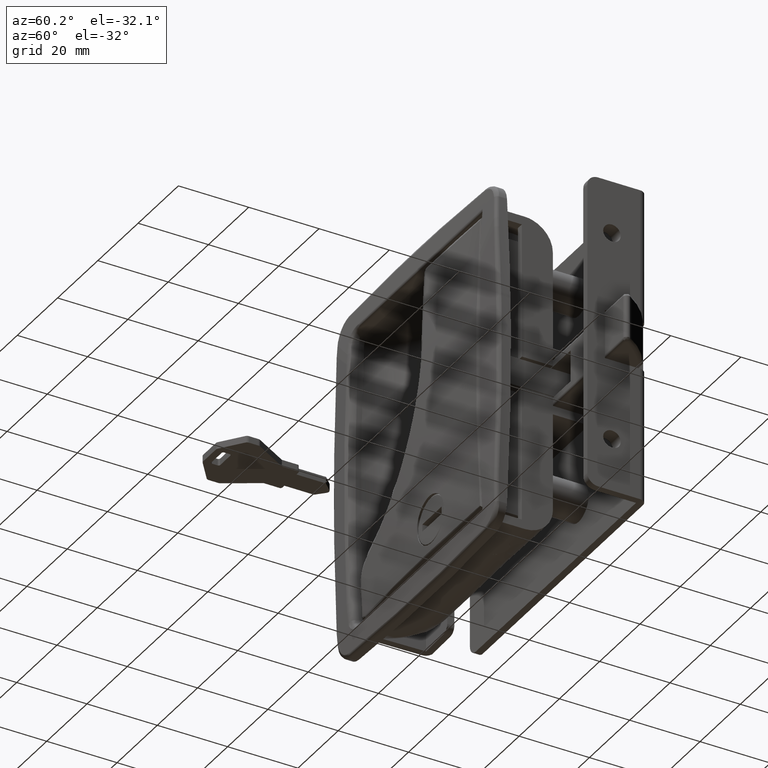
[diagram: clean part render]
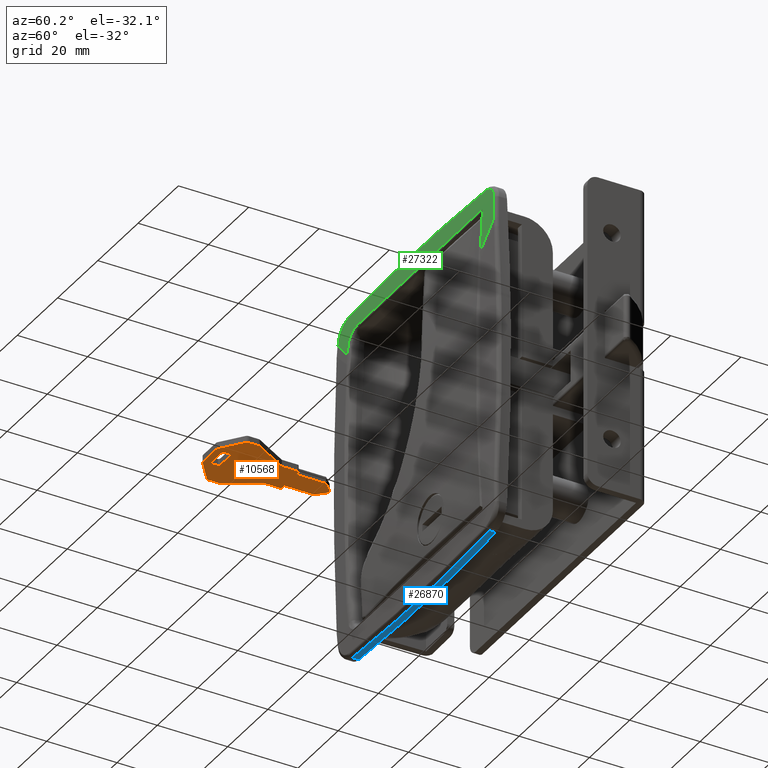
[diagram: same view with three faces highlighted in distinct colors, each labeled with its STEP entity id]
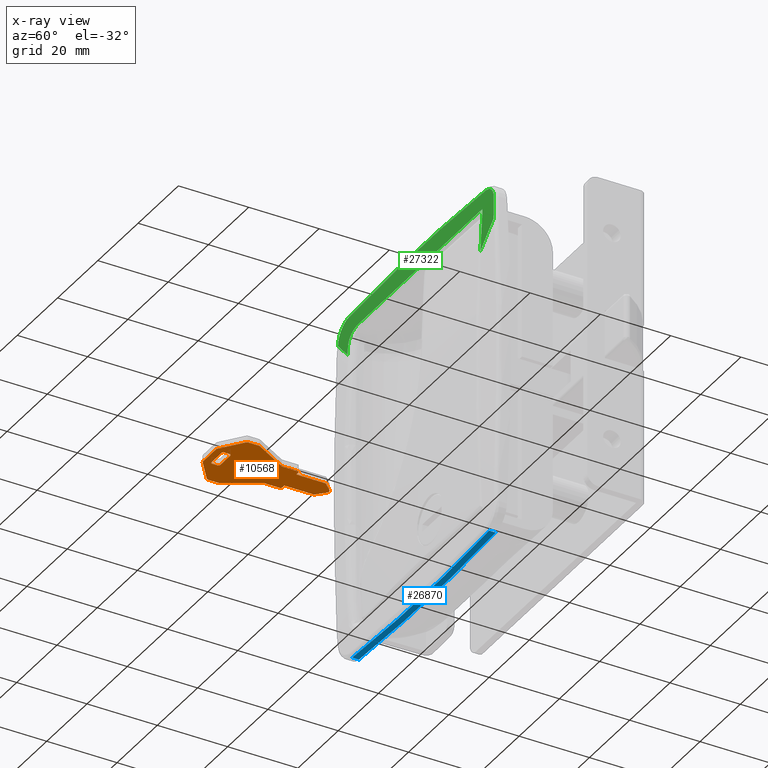
[diagram: x-ray of the same camera — body ghosted, the three highlighted faces saturated]
A machine part, auxiliary view with three faces highlighted in distinct colors.
The next image is the same camera in x-ray (body ghosted, the three faces saturated) — at least one of them is partly hidden behind the body in this view.
Their STEP definitions:

[orange] entity #10568 — the highlighted face is a freeform B-spline surface patch.
#9838=CARTESIAN_POINT('',(4.999000000000270,-93.042406756505400,-33.949700000000000));
#9839=VERTEX_POINT('',#9838);
#9847=CARTESIAN_POINT('',(4.999000000000270,-91.542406756505386,-33.949700000000000));
#9848=VERTEX_POINT('',#9847);
#9849=CARTESIAN_POINT('',(4.999000000000270,-93.042406756505400,-33.949700000000000));
#9850=CARTESIAN_POINT('',(4.999000000000270,-91.542406756505386,-33.949700000000000));
#9851=QUASI_UNIFORM_CURVE('',1,(#9849,#9850),.UNSPECIFIED.,.F.,.U.);
#9852=EDGE_CURVE('',#9839,#9848,#9851,.T.);
#9883=CARTESIAN_POINT('',(5.499000000000271,-93.542406756505400,-33.949700000000000));
#9884=VERTEX_POINT('',#9883);
#9892=CARTESIAN_POINT('',(5.499000000000271,-93.542406756505400,-33.949700000000000));
#9893=CARTESIAN_POINT('',(5.441733124795774,-93.542438690780415,-33.949700000000021));
#9894=CARTESIAN_POINT('',(5.319014302539554,-93.521111773828594,-33.949700000000000));
#9895=CARTESIAN_POINT('',(5.154449940866418,-93.422568526423419,-33.949700000000021));
#9896=CARTESIAN_POINT('',(5.030296794112385,-93.255015657728293,-33.949700000000007));
#9897=CARTESIAN_POINT('',(4.998886156993971,-93.116063852101391,-33.949699999999943));
#9898=CARTESIAN_POINT('',(4.999000000000270,-93.042406756505400,-33.949700000000000));
#9899=B_SPLINE_CURVE_WITH_KNOTS('',3,(#9892,#9893,#9894,#9895,#9896,#9897,#9898),.UNSPECIFIED.,.F.,.U.,(4,1,1,1,4),(0.000000378578442,0.171817992871132,0.368214264647441,0.564555943816670,0.785476941722350),.UNSPECIFIED.);
#9900=EDGE_CURVE('',#9884,#9839,#9899,.T.);
#9921=CARTESIAN_POINT('',(10.499000000000200,-93.542406756505400,-33.949700000000000));
#9922=VERTEX_POINT('',#9921);
#9930=CARTESIAN_POINT('',(10.499000000000200,-93.542406756505400,-33.949700000000000));
#9931=CARTESIAN_POINT('',(5.499000000000271,-93.542406756505400,-33.949700000000000));
#9932=QUASI_UNIFORM_CURVE('',1,(#9930,#9931),.UNSPECIFIED.,.F.,.U.);
#9933=EDGE_CURVE('',#9922,#9884,#9932,.T.);
#9958=CARTESIAN_POINT('',(10.999000000000200,-93.042406756505400,-33.949700000000000));
#9959=VERTEX_POINT('',#9958);
#9967=CARTESIAN_POINT('',(10.999000000000200,-93.042406756505400,-33.949700000000000));
#9968=CARTESIAN_POINT('',(10.999262874163060,-93.132462352309332,-33.949699999999993));
#9969=CARTESIAN_POINT('',(10.955845226088320,-93.287614928145828,-33.949700000000043));
#9970=CARTESIAN_POINT('',(10.827016425533881,-93.429722114974339,-33.949699999999993));
#9971=CARTESIAN_POINT('',(10.678911699377689,-93.518464593670188,-33.949700000000050));
#9972=CARTESIAN_POINT('',(10.572659410082499,-93.542526885230799,-33.949700000000078));
#9973=CARTESIAN_POINT('',(10.499000000000200,-93.542406756505400,-33.949700000000000));
#9974=B_SPLINE_CURVE_WITH_KNOTS('',3,(#9967,#9968,#9969,#9970,#9971,#9972,#9973),.UNSPECIFIED.,.F.,.U.,(4,1,1,1,4),(0.000000378573727,0.270014768421232,0.466349057516936,0.564555943815922,0.785476941722387),.UNSPECIFIED.);
#9975=EDGE_CURVE('',#9959,#9922,#9974,.T.);
#9996=CARTESIAN_POINT('',(10.999000000000200,-91.542406756505386,-33.949700000000000));
#9997=VERTEX_POINT('',#9996);
#10005=CARTESIAN_POINT('',(10.999000000000200,-91.542406756505386,-33.949700000000000));
#10006=CARTESIAN_POINT('',(10.999000000000200,-93.042406756505400,-33.949700000000000));
#10007=QUASI_UNIFORM_CURVE('',1,(#10005,#10006),.UNSPECIFIED.,.F.,.U.);
#10008=EDGE_CURVE('',#9997,#9959,#10007,.T.);
#10033=CARTESIAN_POINT('',(10.499000000000200,-91.042406756505386,-33.949700000000000));
#10034=VERTEX_POINT('',#10033);
#10042=CARTESIAN_POINT('',(10.499000000000200,-91.042406756505386,-33.949700000000000));
#10043=CARTESIAN_POINT('',(10.572655046071590,-91.042295589094877,-33.949700000000028));
#10044=CARTESIAN_POINT('',(10.695269794086100,-91.070034362044865,-33.949699999999957));
#10045=CARTESIAN_POINT('',(10.853462611938960,-91.175701592582897,-33.949700000000057));
#10046=CARTESIAN_POINT('',(10.967722967086139,-91.329774638029647,-33.949699999999893));
#10047=CARTESIAN_POINT('',(10.999102547587430,-91.468754605804605,-33.949700000000107));
#10048=CARTESIAN_POINT('',(10.999000000000200,-91.542406756505386,-33.949700000000000));
#10049=B_SPLINE_CURVE_WITH_KNOTS('',3,(#10042,#10043,#10044,#10045,#10046,#10047,#10048),.UNSPECIFIED.,.F.,.U.,(4,1,1,1,4),(0.000000378576614,0.220921393037243,0.368214264646619,0.564555943816410,0.785476941722344),.UNSPECIFIED.);
#10050=EDGE_CURVE('',#10034,#9997,#10049,.T.);
#10071=CARTESIAN_POINT('',(5.499000000000271,-91.042406756505386,-33.949700000000000));
#10072=VERTEX_POINT('',#10071);
#10080=CARTESIAN_POINT('',(5.499000000000271,-91.042406756505386,-33.949700000000000));
#10081=CARTESIAN_POINT('',(10.499000000000200,-91.042406756505386,-33.949700000000000));
#10082=QUASI_UNIFORM_CURVE('',1,(#10080,#10081),.UNSPECIFIED.,.F.,.U.);
#10083=EDGE_CURVE('',#10072,#10034,#10082,.T.);
#10109=CARTESIAN_POINT('',(4.999000000000270,-91.542406756505386,-33.949700000000000));
#10110=CARTESIAN_POINT('',(4.998747727713385,-91.452361810856061,-33.949700000000043));
#10111=CARTESIAN_POINT('',(5.042143483192164,-91.297185967826110,-33.949699999999950));
#10112=CARTESIAN_POINT('',(5.170988344813793,-91.155099174432635,-33.949700000000007));
#10113=CARTESIAN_POINT('',(5.319084685083299,-91.066337119005169,-33.949700000000057));
#10114=CARTESIAN_POINT('',(5.425343803967603,-91.042296898819700,-33.949700000000000));
#10115=CARTESIAN_POINT('',(5.499000000000271,-91.042406756505386,-33.949700000000000));
#10116=B_SPLINE_CURVE_WITH_KNOTS('',3,(#10109,#10110,#10111,#10112,#10113,#10114,#10115),.UNSPECIFIED.,.F.,.U.,(4,1,1,1,4),(0.000000378573002,0.270014768421335,0.466349057517006,0.564555943815952,0.785476941722334),.UNSPECIFIED.);
#10117=EDGE_CURVE('',#9848,#10072,#10116,.T.);
#10351=CARTESIAN_POINT('',(18.998000524473440,-97.240700024189820,-33.949700000000000));
#10352=CARTESIAN_POINT('',(-3.000000524473008,-97.240700024189820,-33.949700000000000));
#10353=CARTESIAN_POINT('',(18.998000524473440,-59.844192488915532,-33.949700000000000));
#10354=CARTESIAN_POINT('',(-3.000000524473008,-59.844192488915532,-33.949700000000000));
#10355=B_SPLINE_SURFACE_WITH_KNOTS('',1,1,((#10351,#10353),(#10352,#10354)),.UNSPECIFIED.,.F.,.F.,.U.,(2,2),(2,2),(0.0,21.998001048946449),(0.0,37.396507535274289),.UNSPECIFIED.);
#10356=CARTESIAN_POINT('',(3.999000000000185,-72.542406756505400,-33.949700000000000));
#10357=VERTEX_POINT('',#10356);
#10358=CARTESIAN_POINT('',(4.999000000000270,-72.542406756505400,-33.949700000000000));
#10359=VERTEX_POINT('',#10358);
#10360=CARTESIAN_POINT('',(3.999000000000185,-72.542406756505400,-33.949700000000000));
#10361=CARTESIAN_POINT('',(4.999000000000270,-72.542406756505400,-33.949700000000000));
#10362=QUASI_UNIFORM_CURVE('',1,(#10360,#10361),.UNSPECIFIED.,.F.,.U.);
#10363=EDGE_CURVE('',#10357,#10359,#10362,.T.);
#10364=ORIENTED_EDGE('',*,*,#10363,.T.);
#10365=CARTESIAN_POINT('',(4.999000000000270,-64.128106756505403,-33.949700000000000));
#10366=VERTEX_POINT('',#10365);
#10367=CARTESIAN_POINT('',(4.999000000000270,-72.542406756505400,-33.949700000000000));
#10368=CARTESIAN_POINT('',(4.999000000000270,-64.128106756505403,-33.949700000000000));
#10369=QUASI_UNIFORM_CURVE('',1,(#10367,#10368),.UNSPECIFIED.,.F.,.U.);
#10370=EDGE_CURVE('',#10359,#10366,#10369,.T.);
#10371=ORIENTED_EDGE('',*,*,#10370,.T.);
#10372=CARTESIAN_POINT('',(7.300941994688221,-61.826365541756012,-33.949700000000000));
#10373=VERTEX_POINT('',#10372);
#10374=CARTESIAN_POINT('',(4.999000000000270,-64.128106756505403,-33.949700000000000));
#10375=CARTESIAN_POINT('',(7.300941994688221,-61.826365541756012,-33.949700000000000));
#10376=QUASI_UNIFORM_CURVE('',1,(#10374,#10375),.UNSPECIFIED.,.F.,.U.);
#10377=EDGE_CURVE('',#10366,#10373,#10376,.T.);
#10378=ORIENTED_EDGE('',*,*,#10377,.T.);
#10379=CARTESIAN_POINT('',(8.714980323361301,-61.844286296584812,-33.949700000000000));
#10380=VERTEX_POINT('',#10379);
#10381=CARTESIAN_POINT('',(7.300941994688221,-61.826365541756012,-33.949700000000000));
#10382=CARTESIAN_POINT('',(7.394574649656654,-61.734853635371223,-33.949699999999979));
#10383=CARTESIAN_POINT('',(7.555497736963874,-61.630548147983959,-33.949700000000050));
#10384=CARTESIAN_POINT('',(7.854126509786562,-61.540008198751643,-33.949700000000000));
#10385=CARTESIAN_POINT('',(8.136908771850907,-61.533186039047301,-33.949700000000028));
#10386=CARTESIAN_POINT('',(8.460109586563053,-61.635808095490482,-33.949700000000000));
#10387=CARTESIAN_POINT('',(8.635070303107810,-61.762220140434373,-33.949700000000021));
#10388=CARTESIAN_POINT('',(8.714980323361301,-61.844286296584812,-33.949700000000000));
#10389=B_SPLINE_CURVE_WITH_KNOTS('',3,(#10381,#10382,#10383,#10384,#10385,#10386,#10387,#10388),.UNSPECIFIED.,.F.,.U.,(4,1,1,1,1,4),(0.000000339424097,0.392696921871738,0.564510244058113,0.932626063048929,1.227180094158101,1.570786579648486),.UNSPECIFIED.);
#10390=EDGE_CURVE('',#10373,#10380,#10389,.T.);
#10391=ORIENTED_EDGE('',*,*,#10390,.T.);
#10392=CARTESIAN_POINT('',(10.999000000000200,-64.128106756505403,-33.949700000000000));
#10393=VERTEX_POINT('',#10392);
#10394=CARTESIAN_POINT('',(8.714980323361301,-61.844286296584812,-33.949700000000000));
#10395=CARTESIAN_POINT('',(10.999000000000200,-64.128106756505403,-33.949700000000000));
#10396=QUASI_UNIFORM_CURVE('',1,(#10394,#10395),.UNSPECIFIED.,.F.,.U.);
#10397=EDGE_CURVE('',#10380,#10393,#10396,.T.);
#10398=ORIENTED_EDGE('',*,*,#10397,.T.);
#10399=CARTESIAN_POINT('',(10.999000000000200,-72.542406756505400,-33.949700000000000));
#10400=VERTEX_POINT('',#10399);
#10401=CARTESIAN_POINT('',(10.999000000000200,-64.128106756505403,-33.949700000000000));
#10402=CARTESIAN_POINT('',(10.999000000000200,-72.542406756505400,-33.949700000000000));
#10403=QUASI_UNIFORM_CURVE('',1,(#10401,#10402),.UNSPECIFIED.,.F.,.U.);
#10404=EDGE_CURVE('',#10393,#10400,#10403,.T.);
#10405=ORIENTED_EDGE('',*,*,#10404,.T.);
#10406=CARTESIAN_POINT('',(11.999000000000260,-72.542406756505400,-33.949700000000000));
#10407=VERTEX_POINT('',#10406);
#10408=CARTESIAN_POINT('',(10.999000000000200,-72.542406756505400,-33.949700000000000));
#10409=CARTESIAN_POINT('',(11.999000000000260,-72.542406756505400,-33.949700000000000));
#10410=QUASI_UNIFORM_CURVE('',1,(#10408,#10409),.UNSPECIFIED.,.F.,.U.);
#10411=EDGE_CURVE('',#10400,#10407,#10410,.T.);
#10412=ORIENTED_EDGE('',*,*,#10411,.T.);
#10413=CARTESIAN_POINT('',(12.499000000000260,-73.042406756505400,-33.949700000000000));
#10414=VERTEX_POINT('',#10413);
#10415=CARTESIAN_POINT('',(11.999000000000260,-72.542406756505400,-33.949700000000000));
#10416=CARTESIAN_POINT('',(12.056267396961569,-72.542379925519555,-33.949699999999993));
#10417=CARTESIAN_POINT('',(12.178985008146221,-72.563694370926200,-33.949700000000050));
#10418=CARTESIAN_POINT('',(12.343550450875711,-72.662248823840343,-33.949699999999957));
#10419=CARTESIAN_POINT('',(12.467703156220081,-72.829795896576627,-33.949700000000028));
#10420=CARTESIAN_POINT('',(12.499113976099650,-72.968750395563845,-33.949700000000007));
#10421=CARTESIAN_POINT('',(12.499000000000260,-73.042406756505400,-33.949700000000000));
#10422=B_SPLINE_CURVE_WITH_KNOTS('',3,(#10415,#10416,#10417,#10418,#10419,#10420,#10421),.UNSPECIFIED.,.F.,.U.,(4,1,1,1,4),(0.000000378577506,0.171817992870560,0.368214264647079,0.564555943816675,0.785476941722338),.UNSPECIFIED.);
#10423=EDGE_CURVE('',#10407,#10414,#10422,.T.);
#10424=ORIENTED_EDGE('',*,*,#10423,.T.);
#10425=CARTESIAN_POINT('',(12.499000000000200,-77.542406756505400,-33.949700000000000));
#10426=VERTEX_POINT('',#10425);
#10427=CARTESIAN_POINT('',(12.499000000000260,-73.042406756505400,-33.949700000000000));
#10428=CARTESIAN_POINT('',(12.499000000000200,-77.542406756505400,-33.949700000000000));
#10429=QUASI_UNIFORM_CURVE('',1,(#10427,#10428),.UNSPECIFIED.,.F.,.U.);
#10430=EDGE_CURVE('',#10414,#10426,#10429,.T.);
#10431=ORIENTED_EDGE('',*,*,#10430,.T.);
#10432=CARTESIAN_POINT('',(17.851144830436048,-86.787700738996094,-33.949700000000000));
#10433=VERTEX_POINT('',#10432);
#10434=CARTESIAN_POINT('',(12.499000000000200,-77.542406756505400,-33.949700000000000));
#10435=CARTESIAN_POINT('',(17.851144830436048,-86.787700738996094,-33.949700000000000));
#10436=QUASI_UNIFORM_CURVE('',1,(#10434,#10435),.UNSPECIFIED.,.F.,.U.);
#10437=EDGE_CURVE('',#10426,#10433,#10436,.T.);
#10438=ORIENTED_EDGE('',*,*,#10437,.T.);
#10439=CARTESIAN_POINT('',(17.998999999999999,-87.311006756505392,-33.949700000000000));
#10440=VERTEX_POINT('',#10439);
#10441=CARTESIAN_POINT('',(17.851144830436048,-86.787700738996094,-33.949700000000000));
#10442=CARTESIAN_POINT('',(17.947564179505360,-86.944020227332231,-33.949700000000057));
#10443=CARTESIAN_POINT('',(17.999255169266359,-87.127371616950697,-33.949699999999972));
#10444=CARTESIAN_POINT('',(17.998999999999999,-87.311006756505392,-33.949700000000000));
#10445=B_SPLINE_CURVE_WITH_KNOTS('',3,(#10441,#10442,#10443,#10444),.UNSPECIFIED.,.F.,.U.,(4,4),(0.000000029009711,0.550753165417474),.UNSPECIFIED.);
#10446=EDGE_CURVE('',#10433,#10440,#10445,.T.);
#10447=ORIENTED_EDGE('',*,*,#10446,.T.);
#10448=CARTESIAN_POINT('',(17.999000000000251,-90.050006756505397,-33.949700000000000));
#10449=VERTEX_POINT('',#10448);
#10450=CARTESIAN_POINT('',(17.998999999999999,-87.311006756505392,-33.949700000000000));
#10451=CARTESIAN_POINT('',(17.999000000000251,-90.050006756505397,-33.949700000000000));
#10452=QUASI_UNIFORM_CURVE('',1,(#10450,#10451),.UNSPECIFIED.,.F.,.U.);
#10453=EDGE_CURVE('',#10440,#10449,#10452,.T.);
#10454=ORIENTED_EDGE('',*,*,#10453,.T.);
#10455=CARTESIAN_POINT('',(17.609000000000250,-90.842606756505390,-33.949700000000000));
#10456=VERTEX_POINT('',#10455);
#10457=CARTESIAN_POINT('',(17.999000000000251,-90.050006756505397,-33.949700000000000));
#10458=CARTESIAN_POINT('',(17.999177278519870,-90.173930509016472,-33.949700000000007));
#10459=CARTESIAN_POINT('',(17.961452240529880,-90.374011767463529,-33.949699999999993));
#10460=CARTESIAN_POINT('',(17.818066932363880,-90.645478637018954,-33.949700000000007));
#10461=CARTESIAN_POINT('',(17.692140697291130,-90.778721849047045,-33.949699999999972));
#10462=CARTESIAN_POINT('',(17.609000000000250,-90.842606756505390,-33.949700000000000));
#10463=B_SPLINE_CURVE_WITH_KNOTS('',3,(#10457,#10458,#10459,#10460,#10461,#10462),.UNSPECIFIED.,.F.,.U.,(4,1,1,4),(0.000000094137244,0.371731415184507,0.600470108405481,0.915015793163710),.UNSPECIFIED.);
#10464=EDGE_CURVE('',#10449,#10456,#10463,.T.);
#10465=ORIENTED_EDGE('',*,*,#10464,.T.);
#10466=CARTESIAN_POINT('',(11.769000000000281,-95.335006756505393,-33.949700000000000));
#10467=VERTEX_POINT('',#10466);
#10468=CARTESIAN_POINT('',(17.609000000000250,-90.842606756505390,-33.949700000000000));
#10469=CARTESIAN_POINT('',(11.769000000000281,-95.335006756505393,-33.949700000000000));
#10470=QUASI_UNIFORM_CURVE('',1,(#10468,#10469),.UNSPECIFIED.,.F.,.U.);
#10471=EDGE_CURVE('',#10456,#10467,#10470,.T.);
#10472=ORIENTED_EDGE('',*,*,#10471,.T.);
#10473=CARTESIAN_POINT('',(11.159000000000260,-95.542406756505201,-33.949700000000000));
#10474=VERTEX_POINT('',#10473);
#10475=CARTESIAN_POINT('',(11.769000000000281,-95.335006756505393,-33.949700000000000));
#10476=CARTESIAN_POINT('',(11.693198731631810,-95.393369924947834,-33.949699999999943));
#10477=CARTESIAN_POINT('',(11.500584166576610,-95.501580859670455,-33.949700000000092));
#10478=CARTESIAN_POINT('',(11.282020318055840,-95.542552842027405,-33.949699999999972));
#10479=CARTESIAN_POINT('',(11.159000000000260,-95.542406756505201,-33.949700000000000));
#10480=B_SPLINE_CURVE_WITH_KNOTS('',3,(#10475,#10476,#10477,#10478,#10479),.UNSPECIFIED.,.F.,.U.,(4,1,4),(0.000000034419755,0.287016276358898,0.656036812134058),.UNSPECIFIED.);
#10481=EDGE_CURVE('',#10467,#10474,#10480,.T.);
#10482=ORIENTED_EDGE('',*,*,#10481,.T.);
#10483=CARTESIAN_POINT('',(4.839000000000270,-95.542406756505400,-33.949700000000000));
#10484=VERTEX_POINT('',#10483);
#10485=CARTESIAN_POINT('',(11.159000000000260,-95.542406756505201,-33.949700000000000));
#10486=CARTESIAN_POINT('',(4.839000000000270,-95.542406756505400,-33.949700000000000));
#10487=QUASI_UNIFORM_CURVE('',1,(#10485,#10486),.UNSPECIFIED.,.F.,.U.);
#10488=EDGE_CURVE('',#10474,#10484,#10487,.T.);
#10489=ORIENTED_EDGE('',*,*,#10488,.T.);
#10490=CARTESIAN_POINT('',(4.264212819883674,-95.360709694037496,-33.949700000000000));
#10491=VERTEX_POINT('',#10490);
#10492=CARTESIAN_POINT('',(4.839000000000270,-95.542406756505400,-33.949700000000000));
#10493=CARTESIAN_POINT('',(4.634786469196176,-95.542790339063103,-33.949700000000050));
#10494=CARTESIAN_POINT('',(4.431047098148178,-95.478568943754851,-33.949700000000043));
#10495=CARTESIAN_POINT('',(4.264212819883674,-95.360709694037496,-33.949700000000000));
#10496=B_SPLINE_CURVE_WITH_KNOTS('',3,(#10492,#10493,#10494,#10495),.UNSPECIFIED.,.F.,.U.,(4,4),(0.000000049219241,0.612381397390820),.UNSPECIFIED.);
#10497=EDGE_CURVE('',#10484,#10491,#10496,.T.);
#10498=ORIENTED_EDGE('',*,*,#10497,.T.);
#10499=CARTESIAN_POINT('',(-1.610999999999715,-90.842606756505390,-33.949700000000000));
#10500=VERTEX_POINT('',#10499);
#10501=CARTESIAN_POINT('',(4.264212819883674,-95.360709694037496,-33.949700000000000));
#10502=CARTESIAN_POINT('',(-1.610999999999715,-90.842606756505390,-33.949700000000000));
#10503=QUASI_UNIFORM_CURVE('',1,(#10501,#10502),.UNSPECIFIED.,.F.,.U.);
#10504=EDGE_CURVE('',#10491,#10500,#10503,.T.);
#10505=ORIENTED_EDGE('',*,*,#10504,.T.);
#10506=CARTESIAN_POINT('',(-2.000999999999230,-90.050006756505397,-33.949700000000000));
#10507=VERTEX_POINT('',#10506);
#10508=CARTESIAN_POINT('',(-1.610999999999715,-90.842606756505390,-33.949700000000000));
#10509=CARTESIAN_POINT('',(-1.724491223125378,-90.755592539990303,-33.949699999999922));
#10510=CARTESIAN_POINT('',(-1.925334047933554,-90.516762394996860,-33.949700000000163));
#10511=CARTESIAN_POINT('',(-2.001454398509114,-90.212103844914537,-33.949699999999950));
#10512=CARTESIAN_POINT('',(-2.000999999999230,-90.050006756505397,-33.949700000000000));
#10513=B_SPLINE_CURVE_WITH_KNOTS('',3,(#10508,#10509,#10510,#10511,#10512),.UNSPECIFIED.,.F.,.U.,(4,1,4),(0.000000094261314,0.428941242606564,0.915036785654378),.UNSPECIFIED.);
#10514=EDGE_CURVE('',#10500,#10507,#10513,.T.);
#10515=ORIENTED_EDGE('',*,*,#10514,.T.);
#10516=CARTESIAN_POINT('',(-2.000999999999815,-87.311006756505392,-33.949700000000000));
#10517=VERTEX_POINT('',#10516);
#10518=CARTESIAN_POINT('',(-2.000999999999230,-90.050006756505397,-33.949700000000000));
#10519=CARTESIAN_POINT('',(-2.000999999999815,-87.311006756505392,-33.949700000000000));
#10520=QUASI_UNIFORM_CURVE('',1,(#10518,#10519),.UNSPECIFIED.,.F.,.U.);
#10521=EDGE_CURVE('',#10507,#10517,#10520,.T.);
#10522=ORIENTED_EDGE('',*,*,#10521,.T.);
#10523=CARTESIAN_POINT('',(-1.866999964978005,-86.809906696020207,-33.949700000000000));
#10524=VERTEX_POINT('',#10523);
#10525=CARTESIAN_POINT('',(-2.000999999999815,-87.311006756505392,-33.949700000000000));
#10526=CARTESIAN_POINT('',(-2.001604392843329,-87.136040309101844,-33.949699999999979));
#10527=CARTESIAN_POINT('',(-1.954945871304508,-86.961193336023598,-33.949700000000043));
#10528=CARTESIAN_POINT('',(-1.866999964978005,-86.809906696020207,-33.949700000000000));
#10529=B_SPLINE_CURVE_WITH_KNOTS('',3,(#10525,#10526,#10527,#10528),.UNSPECIFIED.,.F.,.U.,(4,4),(0.000000038792368,0.524784690400117),.UNSPECIFIED.);
#10530=EDGE_CURVE('',#10517,#10524,#10529,.T.);
#10531=ORIENTED_EDGE('',*,*,#10530,.T.);
#10532=CARTESIAN_POINT('',(3.499000000000270,-77.542406756505400,-33.949700000000000));
#10533=VERTEX_POINT('',#10532);
#10534=CARTESIAN_POINT('',(-1.866999964978005,-86.809906696020207,-33.949700000000000));
#10535=CARTESIAN_POINT('',(3.499000000000270,-77.542406756505400,-33.949700000000000));
#10536=QUASI_UNIFORM_CURVE('',1,(#10534,#10535),.UNSPECIFIED.,.F.,.U.);
#10537=EDGE_CURVE('',#10524,#10533,#10536,.T.);
#10538=ORIENTED_EDGE('',*,*,#10537,.T.);
#10539=CARTESIAN_POINT('',(3.499000000000270,-73.042406756505400,-33.949700000000000));
#10540=VERTEX_POINT('',#10539);
#10541=CARTESIAN_POINT('',(3.499000000000270,-77.542406756505400,-33.949700000000000));
#10542=CARTESIAN_POINT('',(3.499000000000270,-73.042406756505400,-33.949700000000000));
#10543=QUASI_UNIFORM_CURVE('',1,(#10541,#10542),.UNSPECIFIED.,.F.,.U.);
#10544=EDGE_CURVE('',#10533,#10540,#10543,.T.);
#10545=ORIENTED_EDGE('',*,*,#10544,.T.);
#10546=CARTESIAN_POINT('',(3.499000000000270,-73.042406756505400,-33.949700000000000));
#10547=CARTESIAN_POINT('',(3.498968760838996,-72.985138126423124,-33.949700000000000));
#10548=CARTESIAN_POINT('',(3.520292498666762,-72.862423705705638,-33.949700000000007));
#10549=CARTESIAN_POINT('',(3.618840578620332,-72.697859247160565,-33.949700000000050));
#10550=CARTESIAN_POINT('',(3.786387754532378,-72.573691939882636,-33.949699999999851));
#10551=CARTESIAN_POINT('',(3.925344605174671,-72.542302845992012,-33.949700000000121));
#10552=CARTESIAN_POINT('',(3.999000000000185,-72.542406756505400,-33.949700000000000));
#10553=B_SPLINE_CURVE_WITH_KNOTS('',3,(#10546,#10547,#10548,#10549,#10550,#10551,#10552),.UNSPECIFIED.,.F.,.U.,(4,1,1,1,4),(0.000000378573325,0.171817992867460,0.368214264645315,0.564555943815923,0.785476941722232),.UNSPECIFIED.);
#10554=EDGE_CURVE('',#10540,#10357,#10553,.T.);
#10555=ORIENTED_EDGE('',*,*,#10554,.T.);
#10556=EDGE_LOOP('',(#10364,#10371,#10378,#10391,#10398,#10405,#10412,#10424,#10431,#10438,#10447,#10454,#10465,#10472,#10482,#10489,#10498,#10505,#10515,#10522,#10531,#10538,#10545,#10555));
#10557=FACE_OUTER_BOUND('',#10556,.T.);
#10558=ORIENTED_EDGE('',*,*,#9852,.F.);
#10559=ORIENTED_EDGE('',*,*,#9900,.F.);
#10560=ORIENTED_EDGE('',*,*,#9933,.F.);
#10561=ORIENTED_EDGE('',*,*,#9975,.F.);
#10562=ORIENTED_EDGE('',*,*,#10008,.F.);
#10563=ORIENTED_EDGE('',*,*,#10050,.F.);
#10564=ORIENTED_EDGE('',*,*,#10083,.F.);
#10565=ORIENTED_EDGE('',*,*,#10117,.F.);
#10566=EDGE_LOOP('',(#10558,#10559,#10560,#10561,#10562,#10563,#10564,#10565));
#10567=FACE_BOUND('',#10566,.T.);
#10568=ADVANCED_FACE('',(#10557,#10567),#10355,.T.);

[blue] entity #26870 — the highlighted face is a freeform B-spline surface patch.
#22075=CARTESIAN_POINT('',(-33.990359156688648,-30.904592859498749,49.843249430801798));
#22076=VERTEX_POINT('',#22075);
#22099=CARTESIAN_POINT('',(33.990322708088136,-30.904583801802051,49.843388190968803));
#22100=VERTEX_POINT('',#22099);
#22111=CARTESIAN_POINT('',(-33.990359156688648,-30.904592859498749,49.843249430801798));
#22112=CARTESIAN_POINT('',(-22.660247095087509,-30.854197449824468,50.615287358168473));
#22113=CARTESIAN_POINT('',(-0.000021384097940,-30.802183272138119,51.384666385905568));
#22114=CARTESIAN_POINT('',(22.660207481430330,-30.854191267816731,50.615379865861520));
#22115=CARTESIAN_POINT('',(33.990322708088151,-30.904583801802051,49.843388190968803));
#22116=B_SPLINE_CURVE_WITH_KNOTS('',3,(#22111,#22112,#22113,#22114,#22115),.UNSPECIFIED.,.F.,.U.,(4,1,4),(0.0,0.500000000000000,1.0),.UNSPECIFIED.);
#22117=EDGE_CURVE('',#22076,#22100,#22116,.T.);
#26809=CARTESIAN_POINT('',(-33.990359156688648,-29.0,49.843249430801798));
#26810=VERTEX_POINT('',#26809);
#26811=CARTESIAN_POINT('',(-33.990359156688648,-30.904592859498749,49.843249430801798));
#26812=CARTESIAN_POINT('',(-33.990359156688648,-29.0,49.843249430801798));
#26813=QUASI_UNIFORM_CURVE('',1,(#26811,#26812),.UNSPECIFIED.,.F.,.U.);
#26814=EDGE_CURVE('',#22076,#26810,#26813,.T.);
#26832=CARTESIAN_POINT('',(37.374562428996370,-30.952207680986216,49.601260358781779));
#26833=CARTESIAN_POINT('',(37.374562428996370,-28.951194878862186,49.601260358781779));
#26834=CARTESIAN_POINT('',(-0.002363007075232,-30.952207680986216,52.402915643775998));
#26835=CARTESIAN_POINT('',(-0.002363007075232,-28.951194878862193,52.402915643775998));
#26836=CARTESIAN_POINT('',(-37.379250857287879,-30.952207680986213,49.600758970387048));
#26837=CARTESIAN_POINT('',(-37.379250857287879,-28.951194878862193,49.600758970387048));
#26845=(BOUNDED_SURFACE()B_SPLINE_SURFACE(1,2,((#26832,#26834,#26836),(#26833,#26835,#26837)),.UNSPECIFIED.,.F.,.F.,.U.)B_SPLINE_SURFACE_WITH_KNOTS((2,2),(3,3),(0.0,2.001012802124023),(0.972617763471603,75.837891918230056),.UNSPECIFIED.)GEOMETRIC_REPRESENTATION_ITEM()RATIONAL_B_SPLINE_SURFACE(((0.999907722288166,0.996392601725272,0.998469417880495),(0.999907722288166,0.996392601725272,0.998469417880495)))REPRESENTATION_ITEM('')SURFACE());
#26846=ORIENTED_EDGE('',*,*,#26814,.F.);
#26847=ORIENTED_EDGE('',*,*,#22117,.T.);
#26848=CARTESIAN_POINT('',(33.990322708088136,-29.0,49.843388190968803));
#26849=VERTEX_POINT('',#26848);
#26850=CARTESIAN_POINT('',(33.990322708088136,-30.904583801802051,49.843388190968803));
#26851=CARTESIAN_POINT('',(33.990322708088136,-29.0,49.843388190968803));
#26852=QUASI_UNIFORM_CURVE('',1,(#26850,#26851),.UNSPECIFIED.,.F.,.U.);
#26853=EDGE_CURVE('',#22100,#26849,#26852,.T.);
#26854=ORIENTED_EDGE('',*,*,#26853,.T.);
#26855=CARTESIAN_POINT('',(33.990322708088136,-29.0,49.843388190968803));
#26856=CARTESIAN_POINT('',(-0.000022951741723,-29.0,52.159363214274229));
#26857=CARTESIAN_POINT('',(-33.990359156688648,-29.0,49.843249430801798));
#26865=(BOUNDED_CURVE()B_SPLINE_CURVE(2,(#26855,#26856,#26857),.UNSPECIFIED.,.F.,.U.)CURVE()GEOMETRIC_REPRESENTATION_ITEM()QUASI_UNIFORM_CURVE()RATIONAL_B_SPLINE_CURVE((1.0,0.997686637623849,1.0))REPRESENTATION_ITEM(''));
#26866=EDGE_CURVE('',#26849,#26810,#26865,.T.);
#26867=ORIENTED_EDGE('',*,*,#26866,.T.);
#26868=EDGE_LOOP('',(#26846,#26847,#26854,#26867));
#26869=FACE_OUTER_BOUND('',#26868,.T.);
#26870=ADVANCED_FACE('',(#26869),#26845,.T.);

[green] entity #27322 — the highlighted face is a freeform B-spline surface patch.
#21783=CARTESIAN_POINT('',(33.589222808705848,-32.550919417138857,-37.709665889981999));
#21784=VERTEX_POINT('',#21783);
#21864=CARTESIAN_POINT('',(33.371530053132453,-32.404561068246302,-40.510242139966401));
#21865=VERTEX_POINT('',#21864);
#21878=CARTESIAN_POINT('',(33.589222808705848,-32.550919417138857,-37.709665889981999));
#21879=CARTESIAN_POINT('',(33.371530053132453,-32.404561068246302,-40.510242139966401));
#21880=QUASI_UNIFORM_CURVE('',1,(#21878,#21879),.UNSPECIFIED.,.F.,.U.);
#21881=EDGE_CURVE('',#21784,#21865,#21880,.T.);
#21952=CARTESIAN_POINT('',(28.387751152475602,-32.204031920477462,-44.058492160279300));
#21953=VERTEX_POINT('',#21952);
#21965=CARTESIAN_POINT('',(33.371530053132453,-32.404561068246302,-40.510242139966401));
#21966=CARTESIAN_POINT('',(33.362744454466053,-32.399938840458667,-40.595466586231737));
#21967=CARTESIAN_POINT('',(33.345215816546443,-32.390716775992587,-40.765502632409017));
#21968=CARTESIAN_POINT('',(33.293722945395842,-32.376974973317182,-41.016866641131692));
#21969=CARTESIAN_POINT('',(33.223857680188978,-32.363393065516561,-41.263910871034902));
#21970=CARTESIAN_POINT('',(33.133841544483722,-32.349976517493928,-41.506468622899618));
#21971=CARTESIAN_POINT('',(33.024182471674003,-32.336731397502291,-41.744549143349062));
#21972=CARTESIAN_POINT('',(32.894747679928763,-32.323660702494017,-41.978163041063532));
#21973=CARTESIAN_POINT('',(32.636377426770842,-32.301327181796623,-42.375140794500801));
#21974=CARTESIAN_POINT('',(32.186060912506022,-32.271928825216918,-42.891480488108208));
#21975=CARTESIAN_POINT('',(31.514857901603911,-32.243916711397702,-43.376526269099053));
#21976=CARTESIAN_POINT('',(30.805338017453270,-32.224884204849843,-43.703224978558843));
#21977=CARTESIAN_POINT('',(30.075406305838609,-32.212734790765282,-43.910572366000530));
#21978=CARTESIAN_POINT('',(29.259886043557660,-32.205281176297873,-44.037292280732750));
#21979=CARTESIAN_POINT('',(28.687235681123759,-32.204460905482392,-44.051212281905507));
#21980=CARTESIAN_POINT('',(28.387751152475602,-32.204031920477462,-44.058492160279300));
#21981=B_SPLINE_CURVE_WITH_KNOTS('',3,(#21965,#21966,#21967,#21968,#21969,#21970,#21971,#21972,#21973,#21974,#21975,#21976,#21977,#21978,#21979,#21980),.UNSPECIFIED.,.F.,.U.,(4,1,1,1,1,1,1,1,1,1,1,1,1,4),(0.0,0.038042903603770,0.075901518841160,0.113809843170066,0.152000960354744,0.190702845100137,0.230134614100904,0.270503500670478,0.400966457361083,0.531581710385962,0.634957825979229,0.746104562797864,0.867217834259102,1.000000000000000),.UNSPECIFIED.);
#21982=EDGE_CURVE('',#21865,#21953,#21981,.T.);
#22020=CARTESIAN_POINT('',(-33.0,-32.204031920477398,-44.058492160279201));
#22021=VERTEX_POINT('',#22020);
#22035=CARTESIAN_POINT('',(28.387751152475602,-32.204031920477462,-44.058492160279300));
#22036=CARTESIAN_POINT('',(-33.0,-32.204031920477398,-44.058492160279201));
#22037=QUASI_UNIFORM_CURVE('',1,(#22035,#22036),.UNSPECIFIED.,.F.,.U.);
#22038=EDGE_CURVE('',#21953,#22021,#22037,.T.);
#22973=CARTESIAN_POINT('',(38.677998908110112,-32.264317573116948,-43.022644933378402));
#22974=VERTEX_POINT('',#22973);
#23055=CARTESIAN_POINT('',(-39.093334689355501,-32.545855241958712,-37.810043443759199));
#23056=VERTEX_POINT('',#23055);
#23100=CARTESIAN_POINT('',(38.563370744402903,-32.186638289990903,-44.352843200098562));
#23101=VERTEX_POINT('',#23100);
#23121=CARTESIAN_POINT('',(38.563370744402903,-32.186638289990903,-44.352843200098562));
#23122=CARTESIAN_POINT('',(38.677998908110112,-32.264317573116948,-43.022644933378402));
#23123=QUASI_UNIFORM_CURVE('',1,(#23121,#23122),.UNSPECIFIED.,.F.,.U.);
#23124=EDGE_CURVE('',#23101,#22974,#23123,.T.);
#23179=CARTESIAN_POINT('',(-38.563382875134849,-32.186646510036148,-44.352704555915203));
#23180=VERTEX_POINT('',#23179);
#23191=CARTESIAN_POINT('',(-39.093334689355501,-32.545855241958712,-37.810043443759199));
#23192=CARTESIAN_POINT('',(-38.563382875134849,-32.186646510036148,-44.352704555915203));
#23193=QUASI_UNIFORM_CURVE('',1,(#23191,#23192),.UNSPECIFIED.,.F.,.U.);
#23194=EDGE_CURVE('',#23056,#23180,#23193,.T.);
#23323=CARTESIAN_POINT('',(33.922344062672053,-31.902451614480700,-48.910968775648712));
#23324=VERTEX_POINT('',#23323);
#23353=CARTESIAN_POINT('',(33.922344062672053,-31.902451614480700,-48.910968775648712));
#23354=CARTESIAN_POINT('',(34.456409193329350,-31.905648112917799,-48.874109320807960));
#23355=CARTESIAN_POINT('',(35.311832259139443,-31.919325061778920,-48.673643586766232));
#23356=CARTESIAN_POINT('',(36.293913806294853,-31.952729609641739,-48.150916408751463));
#23357=CARTESIAN_POINT('',(36.994969439321672,-31.986940303370670,-47.606461711480023));
#23358=CARTESIAN_POINT('',(37.572367323754321,-32.025888294086592,-46.980013149025332));
#23359=CARTESIAN_POINT('',(38.075396873897283,-32.075116319341348,-46.181436759609120));
#23360=CARTESIAN_POINT('',(38.420400262827179,-32.128940428196373,-45.302172653033843));
#23361=CARTESIAN_POINT('',(38.536499340091417,-32.167708180920513,-44.664908147931563));
#23362=CARTESIAN_POINT('',(38.563370744402903,-32.186638289990903,-44.352843200098562));
#23363=B_SPLINE_CURVE_WITH_KNOTS('',3,(#23353,#23354,#23355,#23356,#23357,#23358,#23359,#23360,#23361,#23362),.UNSPECIFIED.,.F.,.U.,(4,1,1,1,1,1,1,4),(0.000000112168824,1.605906984440264,2.602700221811050,3.322597607310426,4.263949823084719,5.149982235922059,6.146775473293347,7.088150615132812),.UNSPECIFIED.);
#23364=EDGE_CURVE('',#23324,#23101,#23363,.T.);
#23489=CARTESIAN_POINT('',(-33.922376438375053,-31.902460684280200,-48.910830107962397));
#23490=VERTEX_POINT('',#23489);
#23501=CARTESIAN_POINT('',(-38.563382875134849,-32.186646510036148,-44.352704555915203));
#23502=CARTESIAN_POINT('',(-38.536570276533773,-32.167654545708707,-44.664785272731919));
#23503=CARTESIAN_POINT('',(-38.420555600674781,-32.128773451362207,-45.302079024197617));
#23504=CARTESIAN_POINT('',(-38.014900047223669,-32.065304507179420,-46.336691024143022));
#23505=CARTESIAN_POINT('',(-37.373426009016782,-32.008775281941929,-47.250797669446548));
#23506=CARTESIAN_POINT('',(-36.514883790507092,-31.961073966405301,-48.013795445666481));
#23507=CARTESIAN_POINT('',(-35.420804176949979,-31.921094693547751,-48.643410837605273));
#23508=CARTESIAN_POINT('',(-34.493330478898777,-31.905755182359989,-48.871611964823487));
#23509=CARTESIAN_POINT('',(-33.922376438375053,-31.902460684280200,-48.910830107962397));
#23510=B_SPLINE_CURVE_WITH_KNOTS('',3,(#23501,#23502,#23503,#23504,#23505,#23506,#23507,#23508,#23509),.UNSPECIFIED.,.F.,.U.,(4,1,1,1,1,1,4),(0.000000112301183,0.941417070557987,1.938254611568089,3.322745257041464,4.264139272601319,5.371728214441118,7.088465564128096),.UNSPECIFIED.);
#23511=EDGE_CURVE('',#23180,#23490,#23510,.T.);
#23557=CARTESIAN_POINT('',(-33.922376438375053,-31.902460684280250,-48.910830107962298));
#23558=CARTESIAN_POINT('',(-22.614924605147600,-31.851997936552120,-49.682353488885823));
#23559=CARTESIAN_POINT('',(-0.000019349817325,-31.799914257784572,-50.451219742856487));
#23560=CARTESIAN_POINT('',(22.614889062217109,-31.851991746246071,-49.682445935504632));
#23561=CARTESIAN_POINT('',(33.922344062672053,-31.902451614480700,-48.910968775648797));
#23562=B_SPLINE_CURVE_WITH_KNOTS('',3,(#23557,#23558,#23559,#23560,#23561),.UNSPECIFIED.,.F.,.U.,(4,1,4),(0.0,0.500000000000000,1.0),.UNSPECIFIED.);
#23563=EDGE_CURVE('',#23490,#23324,#23562,.T.);
#23597=CARTESIAN_POINT('',(38.677998908110112,-32.264317573116948,-43.022644933378402));
#23598=CARTESIAN_POINT('',(33.589222808705848,-32.550919417138857,-37.709665889981999));
#23599=QUASI_UNIFORM_CURVE('',1,(#23597,#23598),.UNSPECIFIED.,.F.,.U.);
#23600=EDGE_CURVE('',#22974,#21784,#23599,.T.);
#23694=CARTESIAN_POINT('',(-33.0,-32.840367138586842,-31.443026923469990));
#23695=VERTEX_POINT('',#23694);
#23696=CARTESIAN_POINT('',(-33.0,-32.840367138586842,-31.443026923469990));
#23697=CARTESIAN_POINT('',(-39.093334689355501,-32.545855241958712,-37.810043443759199));
#23698=QUASI_UNIFORM_CURVE('',1,(#23696,#23697),.UNSPECIFIED.,.F.,.U.);
#23699=EDGE_CURVE('',#23695,#23056,#23698,.T.);
#26704=CARTESIAN_POINT('',(-33.0,-32.840367138586963,-31.443026923469969));
#26705=CARTESIAN_POINT('',(-33.000000000000007,-32.575361803089287,-37.753441093948936));
#26706=CARTESIAN_POINT('',(-33.0,-32.204031920477398,-44.058492160279201));
#26714=(BOUNDED_CURVE()B_SPLINE_CURVE(2,(#26704,#26705,#26706),.UNSPECIFIED.,.F.,.U.)CURVE()GEOMETRIC_REPRESENTATION_ITEM()QUASI_UNIFORM_CURVE()RATIONAL_B_SPLINE_CURVE((1.0,0.999964485360647,1.0))REPRESENTATION_ITEM(''));
#26715=EDGE_CURVE('',#23695,#22021,#26714,.T.);
#27295=CARTESIAN_POINT('',(-41.037618029292133,-31.763140505393071,-50.996235954167801));
#27296=CARTESIAN_POINT('',(40.670885693852391,-31.763140505393071,-50.996235954167801));
#27297=CARTESIAN_POINT('',(-41.037618029292140,-32.461211273541046,-40.761806388979103));
#27298=CARTESIAN_POINT('',(40.670885693852398,-32.461211273541046,-40.761806388979103));
#27299=CARTESIAN_POINT('',(-41.037618029292140,-32.878881467170380,-30.512103811269611));
#27300=CARTESIAN_POINT('',(40.670885693852384,-32.878881467170380,-30.512103811269611));
#27308=(BOUNDED_SURFACE()B_SPLINE_SURFACE(1,2,((#27295,#27297,#27299),(#27296,#27298,#27300)),.UNSPECIFIED.,.F.,.F.,.U.)B_SPLINE_SURFACE_WITH_KNOTS((2,2),(3,3),(0.0,81.708503723144531),(4.658572770452500,25.174943350458150),.UNSPECIFIED.)GEOMETRIC_REPRESENTATION_ITEM()RATIONAL_B_SPLINE_SURFACE(((0.999264845694268,0.999072587136173,0.999067535524166),(0.999264845694268,0.999072587136173,0.999067535524166)))REPRESENTATION_ITEM('')SURFACE());
#27309=ORIENTED_EDGE('',*,*,#23600,.T.);
#27310=ORIENTED_EDGE('',*,*,#21881,.T.);
#27311=ORIENTED_EDGE('',*,*,#21982,.T.);
#27312=ORIENTED_EDGE('',*,*,#22038,.T.);
#27313=ORIENTED_EDGE('',*,*,#26715,.F.);
#27314=ORIENTED_EDGE('',*,*,#23699,.T.);
#27315=ORIENTED_EDGE('',*,*,#23194,.T.);
#27316=ORIENTED_EDGE('',*,*,#23511,.T.);
#27317=ORIENTED_EDGE('',*,*,#23563,.T.);
#27318=ORIENTED_EDGE('',*,*,#23364,.T.);
#27319=ORIENTED_EDGE('',*,*,#23124,.T.);
#27320=EDGE_LOOP('',(#27309,#27310,#27311,#27312,#27313,#27314,#27315,#27316,#27317,#27318,#27319));
#27321=FACE_OUTER_BOUND('',#27320,.T.);
#27322=ADVANCED_FACE('',(#27321),#27308,.T.);